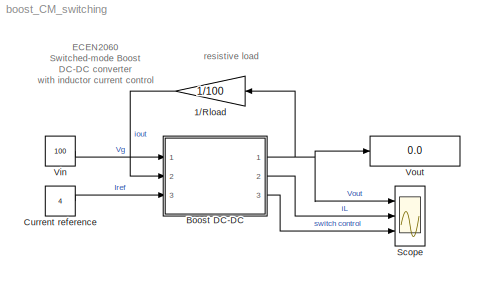
MODEL boost_CM_switching
KIND model
BLOCK [Gain] 1//Rload
  Gain = 1/100
  OutDataTypeMode = Inherit via internal rule
  ParameterDataTypeMode = Inherit via internal rule
  SaturateOnIntegerOverflow = off
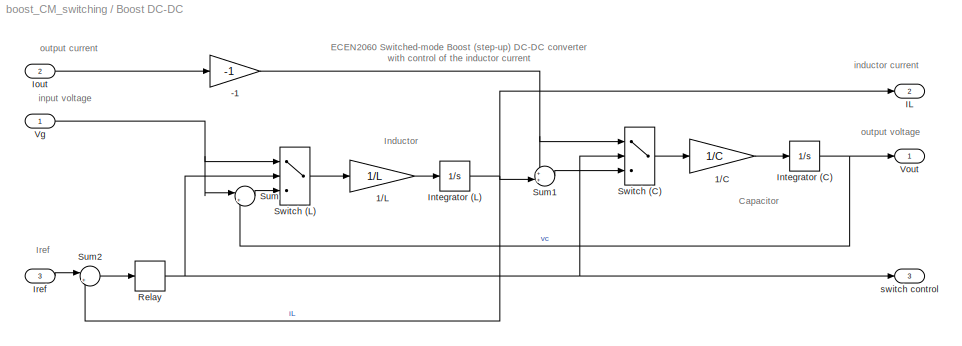
BLOCK [SubSystem] Boost DC-DC
  FunctionWithSeparateData = off
  MaskCallbackString = |||
  MaskDescription = Switched-mode Boost (step-up) DC-DC converter (switching). Inductor current, which is the input current of the converter, is controlled by a comparator with hysteresis. The model is ideal, losses are neglected, efficiency is 100%
  MaskDisplay = text(0.5,0.8,'Boost','horizontalAlignment', 'center');\ntext(0.5,0.65,'DC-DC','horizontalAlignment', 'center');\ntext(0.5,0.5,'(switching)','horizontalAlignment', 'center');\ntext(0.5,0.35,'current control','horizontalAlignment', 'center');
  MaskEnableString = on,on,on,on
  MaskHideContents = off
  MaskIconFrame = on
  MaskIconOpaque = off
  MaskIconRotate = none
  MaskIconUnits = normalized
  MaskPromptString = Inductance|Inductor current ripple|Capacitance|Initial capacitor voltage
  MaskStyleString = edit,edit,edit,edit
  MaskTabNameString = ,,,
  MaskToolTipString = on,on,on,on
  MaskTunableValueString = on,on,on,on
  MaskValueString = 200e-6|1|10e-6|200
  MaskVarAliasString = ,,,
  MaskVariables = L=@1;DeltaI=@2;C=@3;Vo=@4;
  MaskVisibilityString = on,on,on,on
  MinAlgLoopOccurrences = off
  Ports = [3, 3]
  RTWSystemCode = Auto
BLOCK [Gain] Boost DC-DC/-1
  Gain = -1
  OutDataTypeMode = Inherit via internal rule
  ParameterDataTypeMode = Inherit via internal rule
  SaturateOnIntegerOverflow = off
BLOCK [Gain] Boost DC-DC/1//C
  Gain = 1/C
  OutDataTypeMode = Inherit via internal rule
  ParameterDataTypeMode = Inherit via internal rule
  SaturateOnIntegerOverflow = off
BLOCK [Gain] Boost DC-DC/1//L
  Gain = 1/L
  OutDataTypeMode = Inherit via internal rule
  ParameterDataTypeMode = Inherit via internal rule
  SaturateOnIntegerOverflow = off
BLOCK [Outport] Boost DC-DC/IL
  BusOutputAsStruct = off
  IconDisplay = Port number
  Port = 2
BLOCK [Integrator] Boost DC-DC/Integrator (C)
  IgnoreLimit = off
  InitialCondition = Vo
  Ports = [1, 1]
BLOCK [Integrator] Boost DC-DC/Integrator (L)
  IgnoreLimit = off
  Ports = [1, 1]
BLOCK [Inport] Boost DC-DC/Iout
  IconDisplay = Port number
  Port = 2
BLOCK [Inport] Boost DC-DC/Iref
  IconDisplay = Port number
  Port = 3
BLOCK [Relay] Boost DC-DC/Relay
  OffSwitchValue = -DeltaI/2
  OnSwitchValue = DeltaI/2
BLOCK [Sum] Boost DC-DC/Sum
  IconShape = round
  InputSameDT = off
  Inputs = |+-
  OutDataTypeMode = Inherit via internal rule
  Ports = [2, 1]
  SaturateOnIntegerOverflow = off
BLOCK [Sum] Boost DC-DC/Sum1
  IconShape = round
  InputSameDT = off
  Inputs = ++|
  OutDataTypeMode = Inherit via internal rule
  Ports = [2, 1]
  SaturateOnIntegerOverflow = off
BLOCK [Sum] Boost DC-DC/Sum2
  IconShape = round
  InputSameDT = off
  Inputs = |+-
  OutDataTypeMode = Inherit via internal rule
  Ports = [2, 1]
  SaturateOnIntegerOverflow = off
BLOCK [Switch] Boost DC-DC/Switch (C)
  InputSameDT = off
  SaturateOnIntegerOverflow = off
  Threshold = 0.5
BLOCK [Switch] Boost DC-DC/Switch (L)
  InputSameDT = off
  SaturateOnIntegerOverflow = off
  Threshold = 0.5
BLOCK [Inport] Boost DC-DC/Vg
  IconDisplay = Port number
BLOCK [Outport] Boost DC-DC/Vout
  BusOutputAsStruct = off
  IconDisplay = Port number
BLOCK [Outport] Boost DC-DC/switch control
  BusOutputAsStruct = off
  IconDisplay = Port number
  Port = 3
BLOCK [Constant] Current reference
  ConRadixGroup = Use specified scaling
  FramePeriod = inf
  OutDataType = sfix(16)
  OutDataTypeMode = Inherit from 'Constant value'
  OutScaling = 2^0
  SampleTime = inf
  SamplingMode = Sample based
  Value = 4
  VectorParams1D = on
BLOCK [Scope] Scope
  DataFormat = StructureWithTime
  Floating = off
  LimitDataPoints = off
  NumInputPorts = 3
  Ports = [3]
  SampleTime = 0
  TimeRange = 0.001
  YMax = 200~6~1
  YMin = 198~0~0
BLOCK [Constant] Vin
  ConRadixGroup = Use specified scaling
  FramePeriod = inf
  OutDataType = sfix(16)
  OutDataTypeMode = Inherit from 'Constant value'
  OutScaling = 2^0
  SampleTime = inf
  SamplingMode = Sample based
  Value = 100
  VectorParams1D = on
BLOCK [Display] Vout
  Decimation = 1
  Lockdown = off
  Ports = [1]
ANNOTATION (root): ECEN2060\nSwitched-mode Boost\nDC-DC converter\nwith inductor current control
ANNOTATION (root): resistive load
ANNOTATION Boost DC-DC: Capacitor
ANNOTATION Boost DC-DC: ECEN2060 Switched-mode Boost (step-up) DC-DC converter\nwith control of the inductor current
ANNOTATION Boost DC-DC: Inductor
ANNOTATION Boost DC-DC: Iref
ANNOTATION Boost DC-DC: inductor current
ANNOTATION Boost DC-DC: input voltage
ANNOTATION Boost DC-DC: output current
ANNOTATION Boost DC-DC: output voltage
LINE 1//Rload:1 -> Boost DC-DC:2
NET Boost DC-DC/-1:1 -> Boost DC-DC/Sum1:1, Boost DC-DC/Switch (C):1
LINE Boost DC-DC/1//C:1 -> Boost DC-DC/Integrator (C):1
LINE Boost DC-DC/1//L:1 -> Boost DC-DC/Integrator (L):1
NET Boost DC-DC/Integrator (C):1 -> Boost DC-DC/Sum:2, Boost DC-DC/Vout:1
NET Boost DC-DC/Integrator (L):1 -> Boost DC-DC/IL:1, Boost DC-DC/Sum1:2, Boost DC-DC/Sum2:2
LINE Boost DC-DC/Iout:1 -> Boost DC-DC/-1:1
LINE Boost DC-DC/Iref:1 -> Boost DC-DC/Sum2:1
NET Boost DC-DC/Relay:1 -> Boost DC-DC/Switch (C):2, Boost DC-DC/Switch (L):2, Boost DC-DC/switch control:1
LINE Boost DC-DC/Sum1:1 -> Boost DC-DC/Switch (C):3
LINE Boost DC-DC/Sum2:1 -> Boost DC-DC/Relay:1
LINE Boost DC-DC/Sum:1 -> Boost DC-DC/Switch (L):3
LINE Boost DC-DC/Switch (C):1 -> Boost DC-DC/1//C:1
LINE Boost DC-DC/Switch (L):1 -> Boost DC-DC/1//L:1
NET Boost DC-DC/Vg:1 -> Boost DC-DC/Sum:1, Boost DC-DC/Switch (L):1
NET Boost DC-DC:1 -> 1//Rload:1, Scope:1, Vout:1
LINE Boost DC-DC:2 -> Scope:2
LINE Boost DC-DC:3 -> Scope:3
LINE Current reference:1 -> Boost DC-DC:3
LINE Vin:1 -> Boost DC-DC:1
note: NET lines group one-source signal fan-out (src -> all destinations, sorted); 1:1 wires keep LINE
